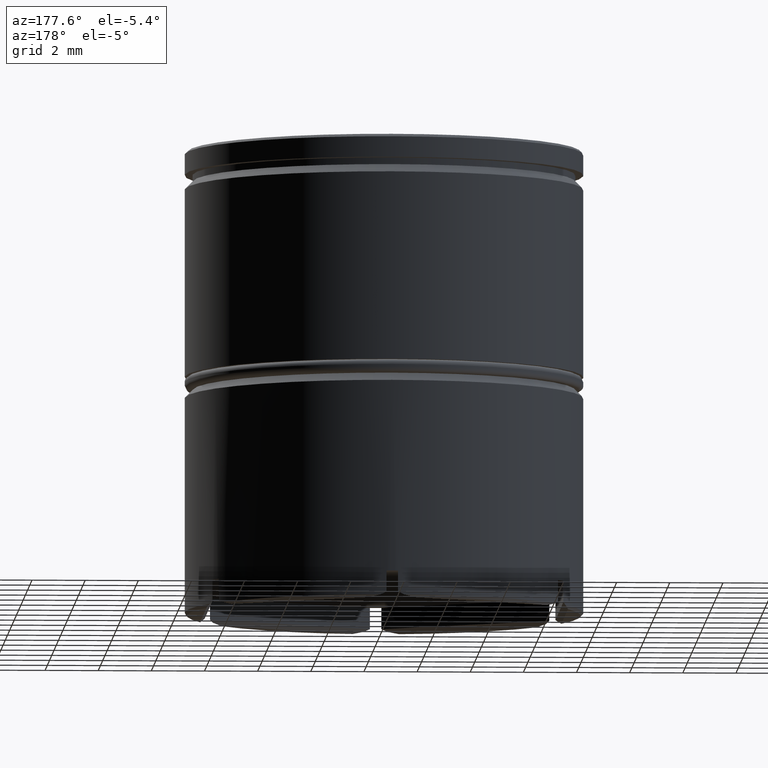
[diagram: clean part render]
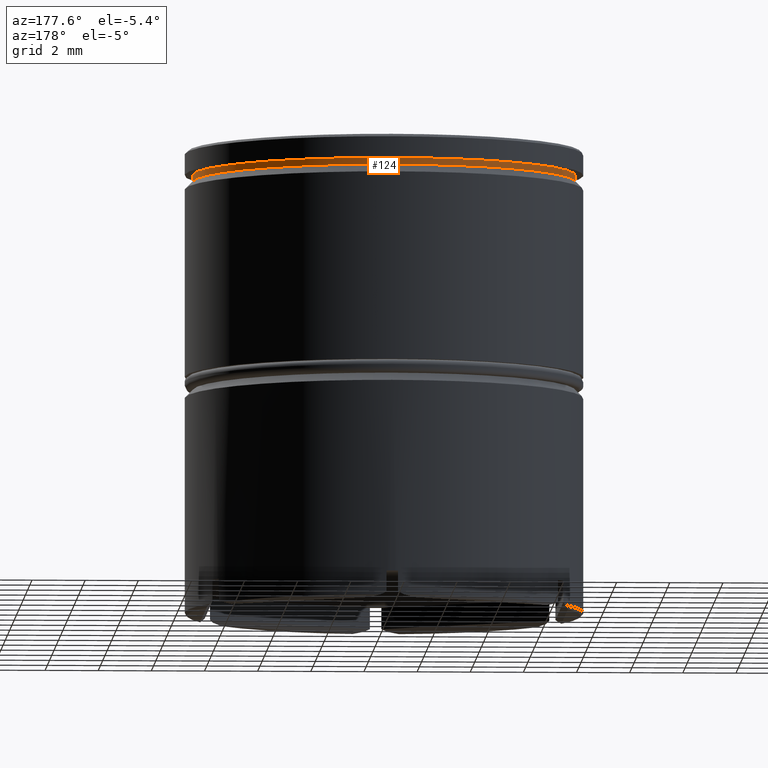
[diagram: same view with one face highlighted and labeled with its STEP entity id]
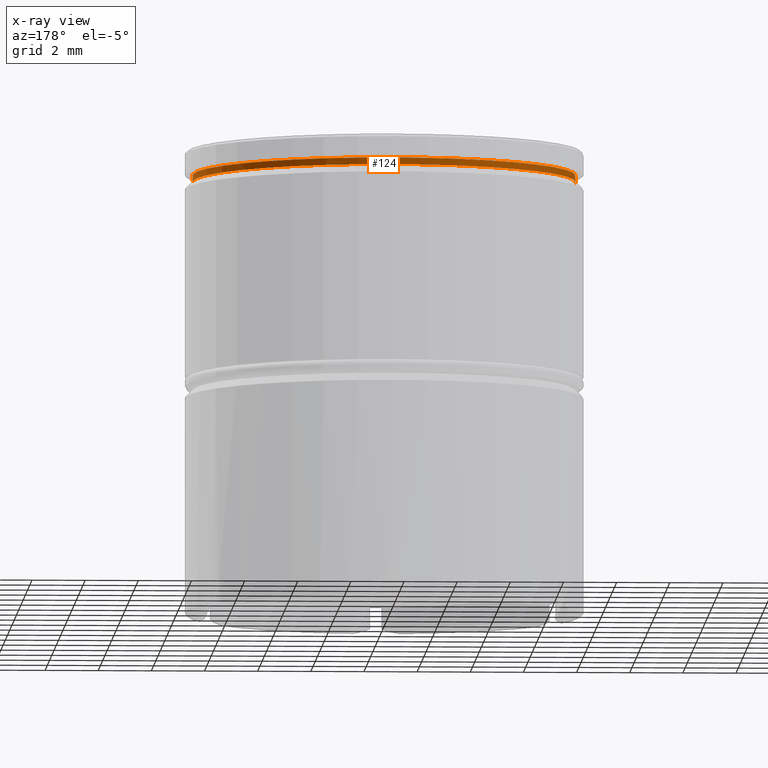
[diagram: x-ray of the same camera — body ghosted, the highlighted face saturated]
A machine part, auxiliary view. The second image highlights one B-rep face of the part: STEP entity #124.
The next image is the same camera in x-ray: the body ghosted, the highlighted face saturated — about 0% of this face is hidden behind the body in this view.
In plain terms, the highlighted cylindrical surface (partial cylindrical patch) has radius 7.2 mm, axis along (-0, -0, 1).
Its self-contained STEP definition (entity closure, byte-faithful):
#4 = EDGE_CURVE ( 'NONE', #614, #917, #863, .T. ) ;
#13 = CARTESIAN_POINT ( 'NONE',  ( 7.200000000000000178, 0.000000000000000000, 0.000000000000000000 ) ) ;
#67 = DIRECTION ( 'NONE',  ( -0.000000000000000000, -0.000000000000000000, 1.000000000000000000 ) ) ;
#76 = DIRECTION ( 'NONE',  ( 1.000000000000000000, 0.000000000000000000, 0.000000000000000000 ) ) ;
#82 = ORIENTED_EDGE ( 'NONE', *, *, #460, .T. ) ;
#92 = VERTEX_POINT ( 'NONE', #394 ) ;
#116 = AXIS2_PLACEMENT_3D ( 'NONE', #1079, #737, #830 ) ;
#124 = ADVANCED_FACE ( 'NONE', ( #705 ), #236, .T. ) ;
#203 = LINE ( 'NONE', #1436, #755 ) ;
#236 = CYLINDRICAL_SURFACE ( 'NONE', #116, 7.200000000000000178 ) ;
#332 = EDGE_LOOP ( 'NONE', ( #1478, #82, #963, #740 ) ) ;
#394 = CARTESIAN_POINT ( 'NONE',  ( -7.200000000000000178, 8.817456953860942303E-16, -0.8749999999999998890 ) ) ;
#401 = DIRECTION ( 'NONE',  ( -0.000000000000000000, -0.000000000000000000, 1.000000000000000000 ) ) ;
#460 = EDGE_CURVE ( 'NONE', #684, #92, #203, .T. ) ;
#480 = AXIS2_PLACEMENT_3D ( 'NONE', #610, #67, #76 ) ;
#610 = CARTESIAN_POINT ( 'NONE',  ( 0.000000000000000000, 0.000000000000000000, -1.125000000000000222 ) ) ;
#614 = VERTEX_POINT ( 'NONE', #1134 ) ;
#684 = VERTEX_POINT ( 'NONE', #1516 ) ;
#705 = FACE_OUTER_BOUND ( 'NONE', #332, .T. ) ;
#735 = CARTESIAN_POINT ( 'NONE',  ( 7.200000000000000178, 0.000000000000000000, -0.8749999999999998890 ) ) ;
#737 = DIRECTION ( 'NONE',  ( -0.000000000000000000, -0.000000000000000000, 1.000000000000000000 ) ) ;
#740 = ORIENTED_EDGE ( 'NONE', *, *, #4, .F. ) ;
#755 = VECTOR ( 'NONE', #1186, 1000.000000000000000 ) ;
#830 = DIRECTION ( 'NONE',  ( 1.000000000000000000, 0.000000000000000000, 0.000000000000000000 ) ) ;
#863 = LINE ( 'NONE', #13, #1243 ) ;
#917 = VERTEX_POINT ( 'NONE', #735 ) ;
#959 = EDGE_CURVE ( 'NONE', #614, #684, #1633, .T. ) ;
#963 = ORIENTED_EDGE ( 'NONE', *, *, #1044, .F. ) ;
#1044 = EDGE_CURVE ( 'NONE', #917, #92, #1109, .T. ) ;
#1079 = CARTESIAN_POINT ( 'NONE',  ( 0.000000000000000000, 0.000000000000000000, 0.000000000000000000 ) ) ;
#1109 = CIRCLE ( 'NONE', #1180, 7.200000000000000178 ) ;
#1119 = DIRECTION ( 'NONE',  ( -0.000000000000000000, -0.000000000000000000, 1.000000000000000000 ) ) ;
#1134 = CARTESIAN_POINT ( 'NONE',  ( 7.200000000000000178, 0.000000000000000000, -1.125000000000000222 ) ) ;
#1180 = AXIS2_PLACEMENT_3D ( 'NONE', #1512, #1119, #1623 ) ;
#1186 = DIRECTION ( 'NONE',  ( -0.000000000000000000, -0.000000000000000000, 1.000000000000000000 ) ) ;
#1243 = VECTOR ( 'NONE', #401, 1000.000000000000000 ) ;
#1436 = CARTESIAN_POINT ( 'NONE',  ( -7.200000000000000178, 8.817456953860942303E-16, 0.000000000000000000 ) ) ;
#1478 = ORIENTED_EDGE ( 'NONE', *, *, #959, .T. ) ;
#1512 = CARTESIAN_POINT ( 'NONE',  ( 0.000000000000000000, 0.000000000000000000, -0.8749999999999998890 ) ) ;
#1516 = CARTESIAN_POINT ( 'NONE',  ( -7.200000000000000178, 8.817456953860942303E-16, -1.125000000000000222 ) ) ;
#1623 = DIRECTION ( 'NONE',  ( 1.000000000000000000, 0.000000000000000000, 0.000000000000000000 ) ) ;
#1633 = CIRCLE ( 'NONE', #480, 7.200000000000000178 ) ;